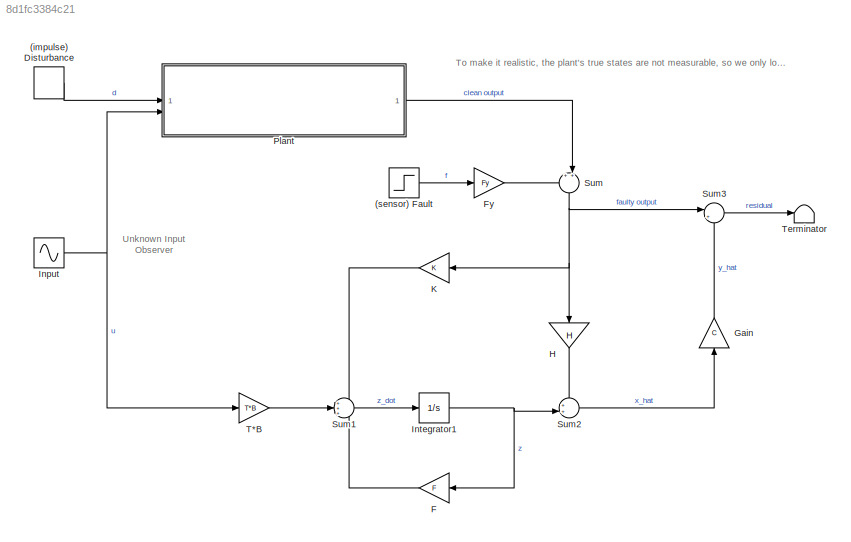
MODEL slx_8d1fc3384c21
KIND model
CONFIG AbsTol = auto
CONFIG EnableMultiTasking = off
CONFIG FixedStep = auto
CONFIG MaxStep = auto
CONFIG MinStep = auto
CONFIG RelTol = 1e-3
CONFIG SampleTimeConstraint = Unconstrained
CONFIG SolverName = VariableStepAuto
CONFIG StartTime = 0.0
CONFIG StopTime = 20
BLOCK [DiscretePulseGenerator] (impulse) Disturbance
  Amplitude = 0.2
  Period = 10
  PhaseDelay = pi/4
  PulseType = Time based
  PulseWidth = 25
BLOCK [Step] (sensor) Fault
  After = 1.17
  SampleTime = 0
  Time = 10
BLOCK [Gain] F
  Gain = F
  Multiplication = Matrix(K*u)
BLOCK [Gain] Fy
  Gain = Fy
  Multiplication = Matrix(K*u)
BLOCK [Gain] Gain
  Gain = C
  Multiplication = Matrix(K*u)
  NameLocation = right
BLOCK [Gain] H
  Gain = H
  Multiplication = Matrix(K*u)
  NameLocation = left
BLOCK [Sin] Input
  SampleTime = 0
BLOCK [Integrator] Integrator1
  InitialCondition = zeros(4,1)
BLOCK [Gain] K
  Gain = K
  Multiplication = Matrix(K*u)
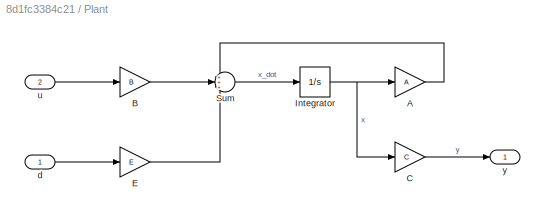
BLOCK [SubSystem] Plant
BLOCK [Gain] Plant/A
  Gain = A
  Multiplication = Matrix(K*u)
BLOCK [Gain] Plant/B
  Gain = B
  Multiplication = Matrix(K*u)
BLOCK [Gain] Plant/C
  Gain = C
  Multiplication = Matrix(K*u)
BLOCK [Gain] Plant/E
  Gain = E
  Multiplication = Matrix(K*u)
BLOCK [Integrator] Plant/Integrator
  InitialCondition = zeros(4,1)
BLOCK [Sum] Plant/Sum
  Inputs = +++
BLOCK [Inport] Plant/d
BLOCK [Inport] Plant/u
  Port = 2
BLOCK [Outport] Plant/y
BLOCK [Sum] Sum
  Inputs = ++|
  NameLocation = left
BLOCK [Sum] Sum1
  Inputs = +++
BLOCK [Sum] Sum2
  Inputs = ++|
BLOCK [Sum] Sum3
  Inputs = |+-
BLOCK [Gain] T*B
  Gain = T*B
  Multiplication = Matrix(K*u)
BLOCK [Terminator] Terminator
ANNOTATION (root): To make it realistic, the plant's true states are not measurable, so we only log input and (faulty) output. Try changing the disturbance type or parameters to see that residual does not depend on it.
ANNOTATION (root): Unknown Input Observer
LINE (impulse) Disturbance:1 -> Plant:1
LINE (sensor) Fault:1 -> Fy:1
LINE F:1 -> Sum1:3
LINE Fy:1 -> Sum:1
LINE Gain:1 -> Sum3:2
LINE H:1 -> Sum2:1
NET Input:1 -> Plant:2, T*B:1
NET Integrator1:1 -> F:1, Sum2:2
LINE K:1 -> Sum1:1
LINE Plant/A:1 -> Plant/Sum:1
LINE Plant/B:1 -> Plant/Sum:2
LINE Plant/C:1 -> Plant/y:1
LINE Plant/E:1 -> Plant/Sum:3
NET Plant/Integrator:1 -> Plant/A:1, Plant/C:1
LINE Plant/Sum:1 -> Plant/Integrator:1
LINE Plant/d:1 -> Plant/E:1
LINE Plant/u:1 -> Plant/B:1
LINE Plant:1 -> Sum:2
LINE Sum1:1 -> Integrator1:1
LINE Sum2:1 -> Gain:1
LINE Sum3:1 -> Terminator:1
NET Sum:1 -> H:1, K:1, Sum3:1
LINE T*B:1 -> Sum1:2
note: NET lines group one-source signal fan-out (src -> all destinations, sorted); 1:1 wires keep LINE
